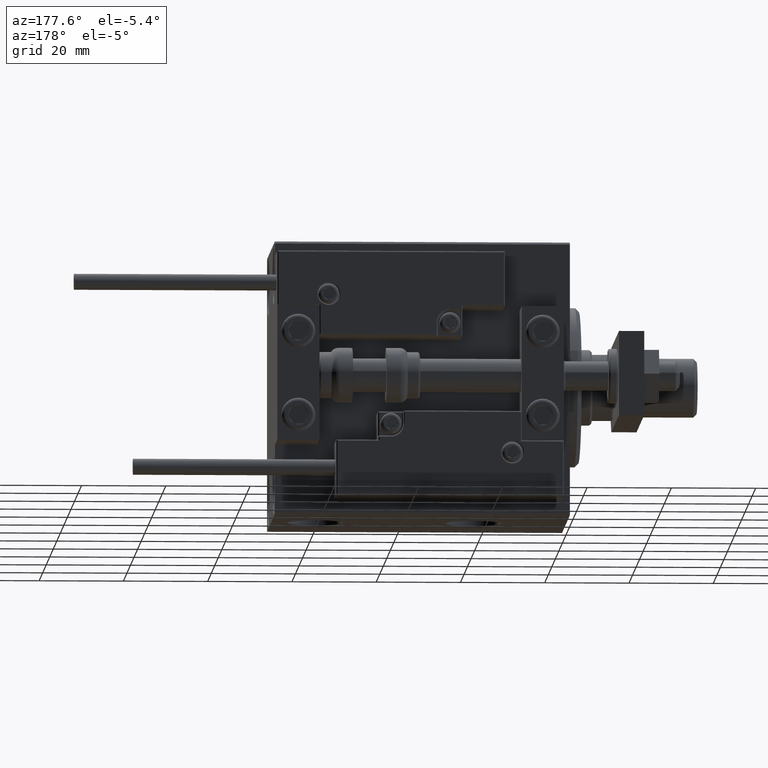
[diagram: clean part render]
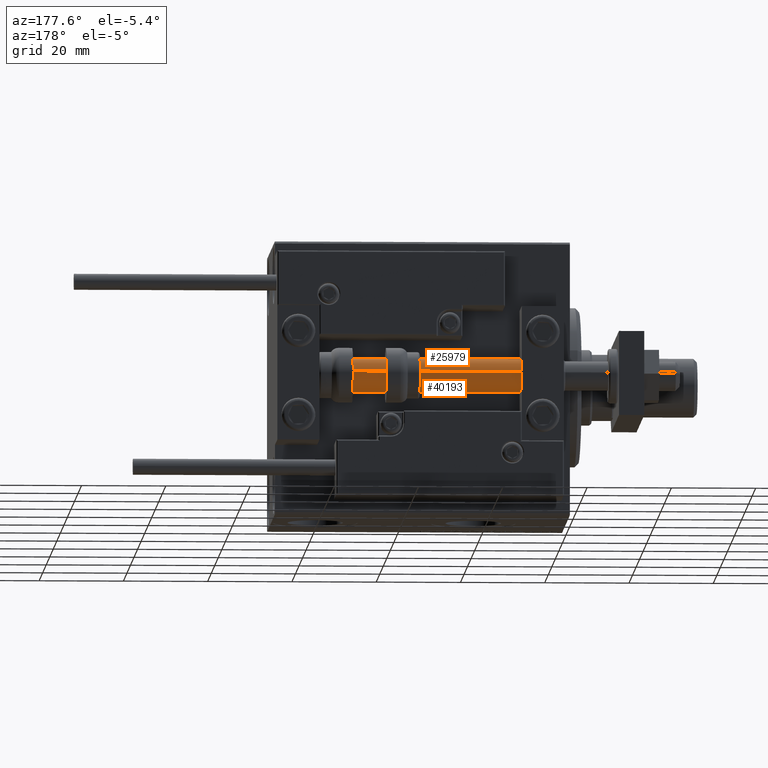
[diagram: same view with one multi-face feature highlighted, each face labeled with its STEP entity id]
A machine part, auxiliary view. The highlighted faces form ONE feature: a constant-radius fillet chain: 2 tangent blend faces with common blend radius 4 mm. The faces share edges in the B-rep.
Their STEP definitions:
[1] entity #40193 (Cylinder):
#2604 = AXIS2_PLACEMENT_3D ( 'NONE', #32287, #39236, #4009 ) ;
#3298 = LINE ( 'NONE', #18989, #14098 ) ;
#4009 = DIRECTION ( 'NONE',  ( 1.000000000000000000, 0.000000000000000000, 0.000000000000000000 ) ) ;
#4074 = VERTEX_POINT ( 'NONE', #28225 ) ;
#4584 = ORIENTED_EDGE ( 'NONE', *, *, #13720, .T. ) ;
#4700 = AXIS2_PLACEMENT_3D ( 'NONE', #8483, #39851, #27795 ) ;
#5885 = CARTESIAN_POINT ( 'NONE',  ( 0.000000000000000000, 0.000000000000000000, 70.00000000000000000 ) ) ;
#8483 = CARTESIAN_POINT ( 'NONE',  ( 0.000000000000000000, 0.000000000000000000, 2.000000000000029310 ) ) ;
#9489 = FACE_OUTER_BOUND ( 'NONE', #29433, .T. ) ;
#10301 = CARTESIAN_POINT ( 'NONE',  ( -4.000000000000000000, 0.000000000000000000, 70.00000000000000000 ) ) ;
#13403 = LINE ( 'NONE', #10301, #20457 ) ;
#13720 = EDGE_CURVE ( 'NONE', #29064, #30276, #38354, .T. ) ;
#14098 = VECTOR ( 'NONE', #23366, 1000.000000000000000 ) ;
#18463 = EDGE_CURVE ( 'NONE', #4074, #29064, #13403, .T. ) ;
#18989 = CARTESIAN_POINT ( 'NONE',  ( 4.000000000000000000, 4.898587196589412829E-16, 70.00000000000000000 ) ) ;
#19383 = ORIENTED_EDGE ( 'NONE', *, *, #45159, .F. ) ;
#19842 = CIRCLE ( 'NONE', #2604, 4.000000000000000000 ) ;
#20457 = VECTOR ( 'NONE', #41908, 1000.000000000000000 ) ;
#23366 = DIRECTION ( 'NONE',  ( -0.000000000000000000, -0.000000000000000000, -1.000000000000000000 ) ) ;
#27182 = ORIENTED_EDGE ( 'NONE', *, *, #18463, .T. ) ;
#27795 = DIRECTION ( 'NONE',  ( 1.000000000000000000, 0.000000000000000000, 0.000000000000000000 ) ) ;
#28225 = CARTESIAN_POINT ( 'NONE',  ( -4.000000000000000000, 0.000000000000000000, 70.00000000000000000 ) ) ;
#29064 = VERTEX_POINT ( 'NONE', #38632 ) ;
#29433 = EDGE_LOOP ( 'NONE', ( #19383, #50439, #27182, #4584 ) ) ;
#29552 = DIRECTION ( 'NONE',  ( -0.000000000000000000, -0.000000000000000000, -1.000000000000000000 ) ) ;
#29796 = DIRECTION ( 'NONE',  ( -1.000000000000000000, 0.000000000000000000, 0.000000000000000000 ) ) ;
#30276 = VERTEX_POINT ( 'NONE', #38310 ) ;
#31564 = VERTEX_POINT ( 'NONE', #36496 ) ;
#32287 = CARTESIAN_POINT ( 'NONE',  ( 0.000000000000000000, 0.000000000000000000, 70.00000000000000000 ) ) ;
#36496 = CARTESIAN_POINT ( 'NONE',  ( 4.000000000000000000, 4.898587196589412829E-16, 70.00000000000000000 ) ) ;
#38310 = CARTESIAN_POINT ( 'NONE',  ( 4.000000000000000000, 4.898587196589412829E-16, 2.000000000000029310 ) ) ;
#38354 = CIRCLE ( 'NONE', #4700, 4.000000000000000000 ) ;
#38632 = CARTESIAN_POINT ( 'NONE',  ( -4.000000000000000000, 0.000000000000000000, 2.000000000000029310 ) ) ;
#39236 = DIRECTION ( 'NONE',  ( 0.000000000000000000, 0.000000000000000000, 1.000000000000000000 ) ) ;
#39851 = DIRECTION ( 'NONE',  ( -0.000000000000000000, -0.000000000000000000, 1.000000000000000000 ) ) ;
#40193 = ADVANCED_FACE ( 'NONE', ( #9489 ), #41110, .T. ) ;
#41110 = CYLINDRICAL_SURFACE ( 'NONE', #47538, 4.000000000000000000 ) ;
#41908 = DIRECTION ( 'NONE',  ( -0.000000000000000000, -0.000000000000000000, -1.000000000000000000 ) ) ;
#45159 = EDGE_CURVE ( 'NONE', #31564, #30276, #3298, .T. ) ;
#45502 = EDGE_CURVE ( 'NONE', #4074, #31564, #19842, .T. ) ;
#47538 = AXIS2_PLACEMENT_3D ( 'NONE', #5885, #29552, #29796 ) ;
#50439 = ORIENTED_EDGE ( 'NONE', *, *, #45502, .F. ) ;
[2] entity #25979 (Cylinder):
#3298 = LINE ( 'NONE', #18989, #14098 ) ;
#3457 = FACE_OUTER_BOUND ( 'NONE', #41443, .T. ) ;
#4074 = VERTEX_POINT ( 'NONE', #28225 ) ;
#10067 = CARTESIAN_POINT ( 'NONE',  ( 0.000000000000000000, 0.000000000000000000, 70.00000000000000000 ) ) ;
#10301 = CARTESIAN_POINT ( 'NONE',  ( -4.000000000000000000, 0.000000000000000000, 70.00000000000000000 ) ) ;
#10420 = CYLINDRICAL_SURFACE ( 'NONE', #24218, 4.000000000000000000 ) ;
#11652 = CIRCLE ( 'NONE', #23143, 4.000000000000000000 ) ;
#13403 = LINE ( 'NONE', #10301, #20457 ) ;
#14098 = VECTOR ( 'NONE', #23366, 1000.000000000000000 ) ;
#14691 = DIRECTION ( 'NONE',  ( 1.000000000000000000, 0.000000000000000000, 0.000000000000000000 ) ) ;
#18463 = EDGE_CURVE ( 'NONE', #4074, #29064, #13403, .T. ) ;
#18989 = CARTESIAN_POINT ( 'NONE',  ( 4.000000000000000000, 4.898587196589412829E-16, 70.00000000000000000 ) ) ;
#20457 = VECTOR ( 'NONE', #41908, 1000.000000000000000 ) ;
#21538 = DIRECTION ( 'NONE',  ( -0.000000000000000000, -0.000000000000000000, 1.000000000000000000 ) ) ;
#22786 = EDGE_CURVE ( 'NONE', #30276, #29064, #43908, .T. ) ;
#23143 = AXIS2_PLACEMENT_3D ( 'NONE', #10067, #49861, #14691 ) ;
#23366 = DIRECTION ( 'NONE',  ( -0.000000000000000000, -0.000000000000000000, -1.000000000000000000 ) ) ;
#24218 = AXIS2_PLACEMENT_3D ( 'NONE', #27134, #42018, #45870 ) ;
#25979 = ADVANCED_FACE ( 'NONE', ( #3457 ), #10420, .T. ) ;
#27134 = CARTESIAN_POINT ( 'NONE',  ( 0.000000000000000000, 0.000000000000000000, 70.00000000000000000 ) ) ;
#28225 = CARTESIAN_POINT ( 'NONE',  ( -4.000000000000000000, 0.000000000000000000, 70.00000000000000000 ) ) ;
#29064 = VERTEX_POINT ( 'NONE', #38632 ) ;
#29945 = AXIS2_PLACEMENT_3D ( 'NONE', #48989, #21538, #45168 ) ;
#30276 = VERTEX_POINT ( 'NONE', #38310 ) ;
#31564 = VERTEX_POINT ( 'NONE', #36496 ) ;
#36496 = CARTESIAN_POINT ( 'NONE',  ( 4.000000000000000000, 4.898587196589412829E-16, 70.00000000000000000 ) ) ;
#38310 = CARTESIAN_POINT ( 'NONE',  ( 4.000000000000000000, 4.898587196589412829E-16, 2.000000000000029310 ) ) ;
#38632 = CARTESIAN_POINT ( 'NONE',  ( -4.000000000000000000, 0.000000000000000000, 2.000000000000029310 ) ) ;
#39178 = ORIENTED_EDGE ( 'NONE', *, *, #45756, .F. ) ;
#40725 = ORIENTED_EDGE ( 'NONE', *, *, #45159, .T. ) ;
#41263 = ORIENTED_EDGE ( 'NONE', *, *, #22786, .T. ) ;
#41443 = EDGE_LOOP ( 'NONE', ( #39178, #40725, #41263, #43264 ) ) ;
#41908 = DIRECTION ( 'NONE',  ( -0.000000000000000000, -0.000000000000000000, -1.000000000000000000 ) ) ;
#42018 = DIRECTION ( 'NONE',  ( -0.000000000000000000, -0.000000000000000000, -1.000000000000000000 ) ) ;
#43264 = ORIENTED_EDGE ( 'NONE', *, *, #18463, .F. ) ;
#43908 = CIRCLE ( 'NONE', #29945, 4.000000000000000000 ) ;
#45159 = EDGE_CURVE ( 'NONE', #31564, #30276, #3298, .T. ) ;
#45168 = DIRECTION ( 'NONE',  ( 1.000000000000000000, 0.000000000000000000, 0.000000000000000000 ) ) ;
#45756 = EDGE_CURVE ( 'NONE', #31564, #4074, #11652, .T. ) ;
#45870 = DIRECTION ( 'NONE',  ( -1.000000000000000000, 0.000000000000000000, 0.000000000000000000 ) ) ;
#48989 = CARTESIAN_POINT ( 'NONE',  ( 0.000000000000000000, 0.000000000000000000, 2.000000000000029310 ) ) ;
#49861 = DIRECTION ( 'NONE',  ( 0.000000000000000000, 0.000000000000000000, 1.000000000000000000 ) ) ;